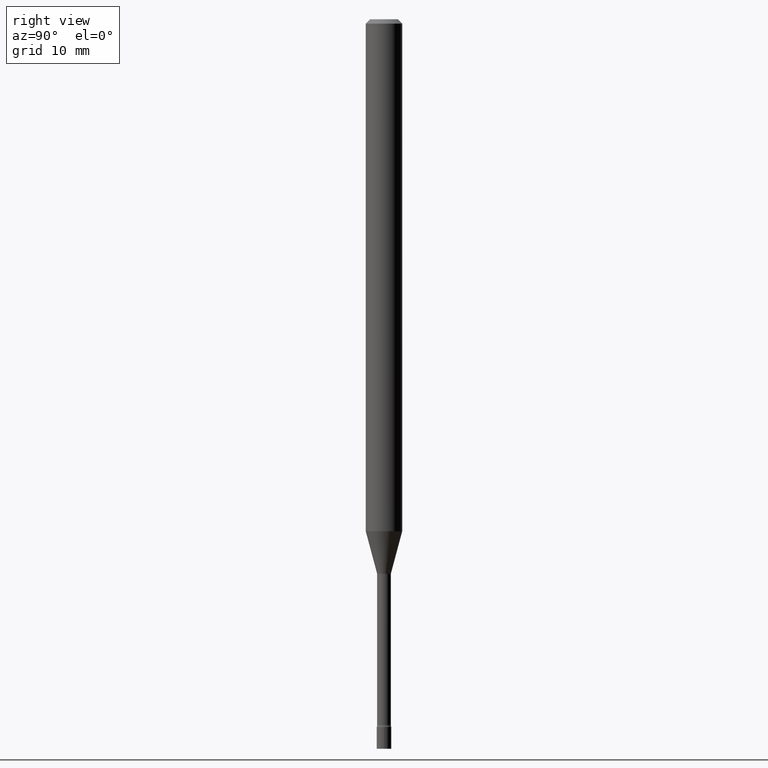
[diagram: clean part render]
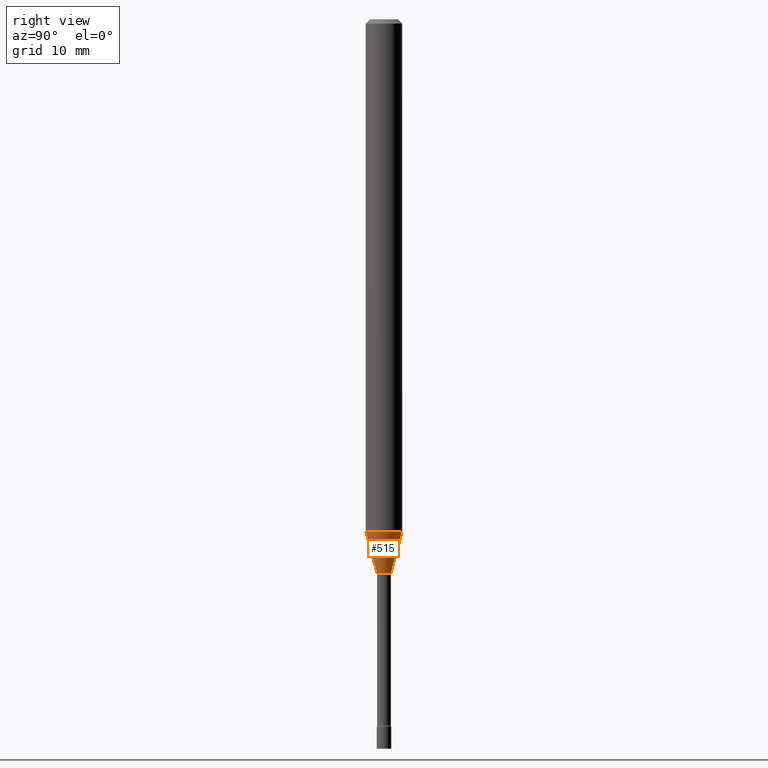
[diagram: same view with one face highlighted and labeled with its STEP entity id]
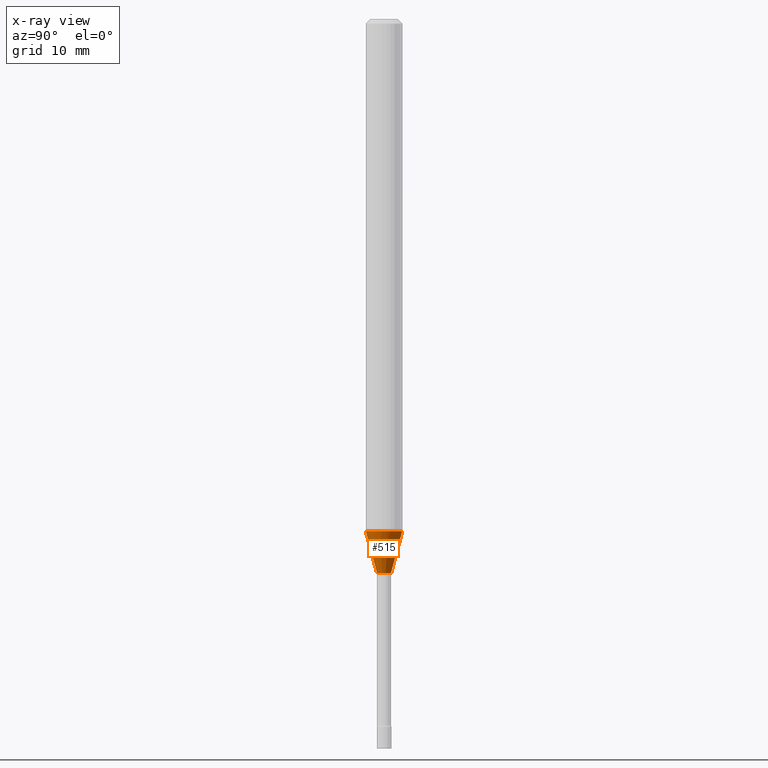
[diagram: x-ray of the same camera — body ghosted, the highlighted face saturated]
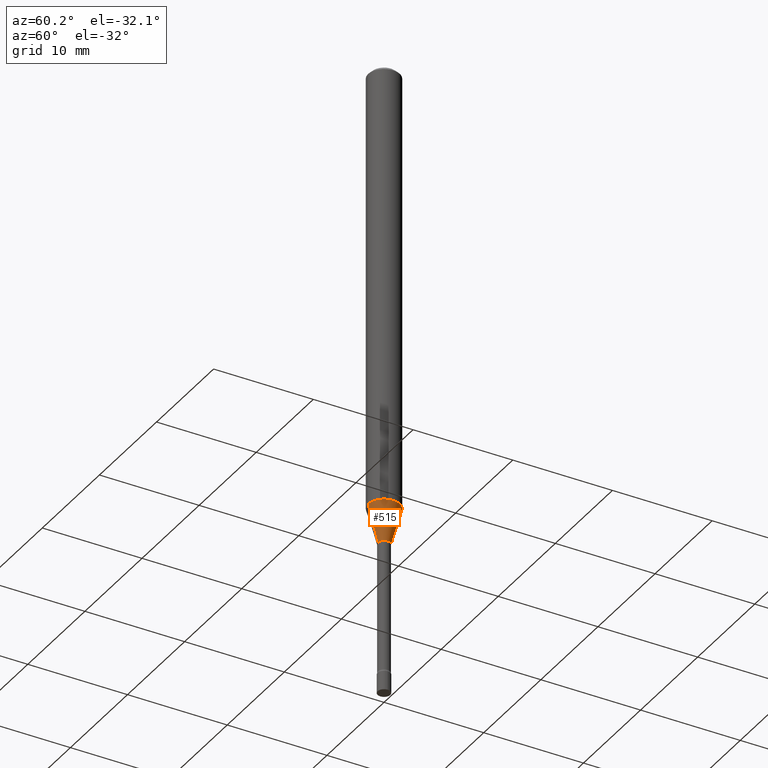
[diagram: same view with one face highlighted and labeled with its STEP entity id]
A machine part, right view. The second image highlights one B-rep face of the part: STEP entity #515.
The next image is the same camera in x-ray: the body ghosted, the highlighted face saturated — about 0% of this face is hidden behind the body in this view.
A second angle (auxiliary view) of the same face is appended — the face is thin or edge-on in the first view.
In plain terms, the highlighted conical surface has half-angle 15 deg.
Its self-contained STEP definition (entity closure, byte-faithful):
#2 = VERTEX_POINT ( 'NONE', #168 ) ;
#14 = CARTESIAN_POINT ( 'NONE',  ( 1.706092163947695036E-16, 0.02401111260565735178, -1.898092501787273401 ) ) ;
#15 = EDGE_CURVE ( 'NONE', #270, #40, #210, .T. ) ;
#31 = DIRECTION ( 'NONE',  ( -1.807323732225330928E-15, -0.2588190451025182970, 0.9659258262890689783 ) ) ;
#32 = ORIENTED_EDGE ( 'NONE', *, *, #125, .T. ) ;
#35 = VERTEX_POINT ( 'NONE', #428 ) ;
#40 = VERTEX_POINT ( 'NONE', #387 ) ;
#42 = FACE_OUTER_BOUND ( 'NONE', #466, .T. ) ;
#43 = CARTESIAN_POINT ( 'NONE',  ( 4.290438924638068672E-29, -6.125649358772860371E-15, -1.754450018504814635 ) ) ;
#56 = CIRCLE ( 'NONE', #354, 0.02401111260566398189 ) ;
#82 = VECTOR ( 'NONE', #101, 39.37007874015748143 ) ;
#101 = DIRECTION ( 'NONE',  ( 1.839019923739601104E-15, 0.2588190451025250693, 0.9659258262890670910 ) ) ;
#120 = ORIENTED_EDGE ( 'NONE', *, *, #184, .F. ) ;
#125 = EDGE_CURVE ( 'NONE', #2, #40, #499, .T. ) ;
#131 = ORIENTED_EDGE ( 'NONE', *, *, #303, .T. ) ;
#166 = ORIENTED_EDGE ( 'NONE', *, *, #15, .F. ) ;
#168 = CARTESIAN_POINT ( 'NONE',  ( 3.073492131224375317E-16, 0.02401111260565734831, -1.898092501787273401 ) ) ;
#184 = EDGE_CURVE ( 'NONE', #35, #270, #436, .T. ) ;
#210 = CIRCLE ( 'NONE', #267, 0.06250000000000000000 ) ;
#224 = VECTOR ( 'NONE', #31, 39.37007874015748143 ) ;
#241 = DIRECTION ( 'NONE',  ( -6.982962677686265133E-15, -1.000000000000000000, 0.000000000000000000 ) ) ;
#266 = DIRECTION ( 'NONE',  ( -6.982962677686265133E-15, -1.000000000000000000, 0.000000000000000000 ) ) ;
#267 = AXIS2_PLACEMENT_3D ( 'NONE', #43, #367, #488 ) ;
#270 = VERTEX_POINT ( 'NONE', #473 ) ;
#278 = AXIS2_PLACEMENT_3D ( 'NONE', #448, #402, #241 ) ;
#303 = EDGE_CURVE ( 'NONE', #35, #2, #56, .T. ) ;
#306 = CARTESIAN_POINT ( 'NONE',  ( -1.676687031750273969E-16, -0.02401111260567060854, -1.898092501787273401 ) ) ;
#354 = AXIS2_PLACEMENT_3D ( 'NONE', #465, #505, #266 ) ;
#367 = DIRECTION ( 'NONE',  ( -2.445460901926682193E-29, 3.491492658191134624E-15, 1.000000000000000000 ) ) ;
#380 = CONICAL_SURFACE ( 'NONE', #278, 0.02401111260566398189, 0.2617993877991502960 ) ;
#387 = CARTESIAN_POINT ( 'NONE',  ( 4.440892098501052147E-16, 0.06249999999999384520, -1.754450018504814857 ) ) ;
#402 = DIRECTION ( 'NONE',  ( -2.445460901926682193E-29, 3.491492658191134624E-15, 1.000000000000000000 ) ) ;
#428 = CARTESIAN_POINT ( 'NONE',  ( -1.676687031750273969E-16, -0.02401111260567060854, -1.898092501787273401 ) ) ;
#436 = LINE ( 'NONE', #306, #224 ) ;
#448 = CARTESIAN_POINT ( 'NONE',  ( 4.641711001360978521E-29, -6.627176034557907818E-15, -1.898092501787273401 ) ) ;
#465 = CARTESIAN_POINT ( 'NONE',  ( 4.641711001360978521E-29, -6.627176034557907818E-15, -1.898092501787273401 ) ) ;
#466 = EDGE_LOOP ( 'NONE', ( #131, #32, #166, #120 ) ) ;
#473 = CARTESIAN_POINT ( 'NONE',  ( -4.364351673553489230E-16, -0.06250000000000614786, -1.754450018504814190 ) ) ;
#488 = DIRECTION ( 'NONE',  ( -6.982962677686265922E-15, -1.000000000000000000, 4.370956789862821150E-15 ) ) ;
#499 = LINE ( 'NONE', #14, #82 ) ;
#505 = DIRECTION ( 'NONE',  ( -2.445460901926682193E-29, 3.491492658191134624E-15, 1.000000000000000000 ) ) ;
#515 = ADVANCED_FACE ( 'NONE', ( #42 ), #380, .T. ) ;